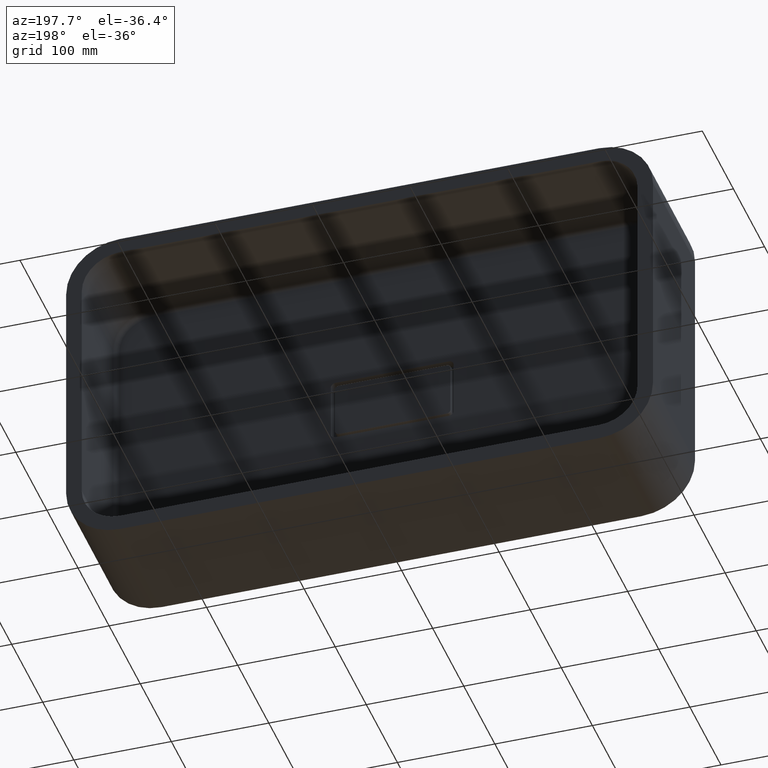
[diagram: clean part render]
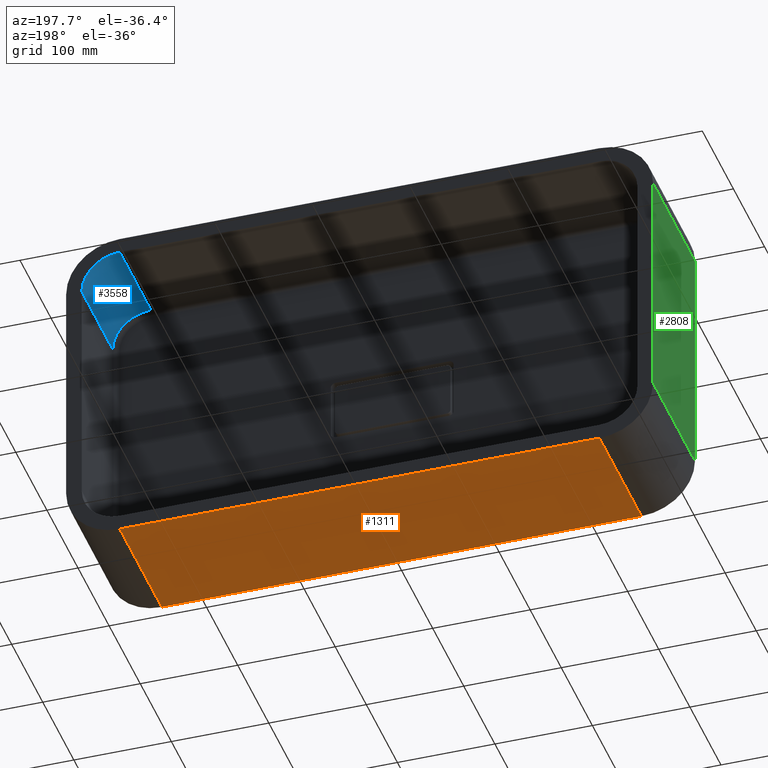
[diagram: same view with three faces highlighted in distinct colors, each labeled with its STEP entity id]
A machine part, auxiliary view with three faces highlighted in distinct colors.
Their STEP definitions:

[orange] entity #1311 — the highlighted planar face has unit normal (0, 0, 1).
#25 = ORIENTED_EDGE ( 'NONE', *, *, #1104, .F. ) ;
#312 = CARTESIAN_POINT ( 'NONE',  ( -246.0000000000001100, 180.0000000000000000, -176.0000000000000300 ) ) ;
#424 = VERTEX_POINT ( 'NONE', #3803 ) ;
#485 = VECTOR ( 'NONE', #2912, 1000.000000000000000 ) ;
#500 = LINE ( 'NONE', #2735, #485 ) ;
#618 = CARTESIAN_POINT ( 'NONE',  ( -246.0000000000001100, 0.0000000000000000000, -176.0000000000000300 ) ) ;
#1013 = DIRECTION ( 'NONE',  ( 0.0000000000000000000, 0.0000000000000000000, 1.000000000000000000 ) ) ;
#1028 = CARTESIAN_POINT ( 'NONE',  ( 245.9999999999999400, 135.0000000000000000, -176.0000000000000300 ) ) ;
#1037 = DIRECTION ( 'NONE',  ( -1.000000000000000000, 0.0000000000000000000, 0.0000000000000000000 ) ) ;
#1104 = EDGE_CURVE ( 'NONE', #424, #1836, #3034, .T. ) ;
#1184 = ORIENTED_EDGE ( 'NONE', *, *, #3426, .T. ) ;
#1185 = EDGE_LOOP ( 'NONE', ( #25, #3110, #1184, #1342 ) ) ;
#1311 = ADVANCED_FACE ( 'NONE', ( #2681 ), #3391, .F. ) ;
#1342 = ORIENTED_EDGE ( 'NONE', *, *, #1673, .F. ) ;
#1556 = CARTESIAN_POINT ( 'NONE',  ( -246.0000000000001100, 180.0000000000000000, -176.0000000000000300 ) ) ;
#1579 = VECTOR ( 'NONE', #3545, 1000.000000000000000 ) ;
#1613 = LINE ( 'NONE', #3581, #1579 ) ;
#1673 = EDGE_CURVE ( 'NONE', #1836, #2828, #2038, .T. ) ;
#1836 = VERTEX_POINT ( 'NONE', #2181 ) ;
#2007 = VECTOR ( 'NONE', #2036, 1000.000000000000000 ) ;
#2036 = DIRECTION ( 'NONE',  ( -0.0000000000000000000, -1.000000000000000000, -0.0000000000000000000 ) ) ;
#2038 = LINE ( 'NONE', #312, #2007 ) ;
#2181 = CARTESIAN_POINT ( 'NONE',  ( -246.0000000000001100, 135.0000000000000000, -176.0000000000000300 ) ) ;
#2602 = VERTEX_POINT ( 'NONE', #2851 ) ;
#2681 = FACE_OUTER_BOUND ( 'NONE', #1185, .T. ) ;
#2735 = CARTESIAN_POINT ( 'NONE',  ( 245.9999999999999400, 180.0000000000000000, -176.0000000000000300 ) ) ;
#2828 = VERTEX_POINT ( 'NONE', #618 ) ;
#2851 = CARTESIAN_POINT ( 'NONE',  ( 245.9999999999999400, 0.0000000000000000000, -176.0000000000000300 ) ) ;
#2886 = AXIS2_PLACEMENT_3D ( 'NONE', #1556, #1013, #3256 ) ;
#2912 = DIRECTION ( 'NONE',  ( -0.0000000000000000000, -1.000000000000000000, -0.0000000000000000000 ) ) ;
#3031 = VECTOR ( 'NONE', #1037, 1000.000000000000000 ) ;
#3034 = LINE ( 'NONE', #1028, #3031 ) ;
#3110 = ORIENTED_EDGE ( 'NONE', *, *, #3745, .T. ) ;
#3256 = DIRECTION ( 'NONE',  ( 1.000000000000000000, 0.0000000000000000000, -0.0000000000000000000 ) ) ;
#3391 = PLANE ( 'NONE',  #2886 ) ;
#3426 = EDGE_CURVE ( 'NONE', #2602, #2828, #1613, .T. ) ;
#3545 = DIRECTION ( 'NONE',  ( -1.000000000000000000, -0.0000000000000000000, -0.0000000000000000000 ) ) ;
#3581 = CARTESIAN_POINT ( 'NONE',  ( -246.0000000000001100, 0.0000000000000000000, -176.0000000000000300 ) ) ;
#3745 = EDGE_CURVE ( 'NONE', #424, #2602, #500, .T. ) ;
#3803 = CARTESIAN_POINT ( 'NONE',  ( 245.9999999999999400, 135.0000000000000000, -176.0000000000000300 ) ) ;

[blue] entity #3558 — the highlighted cylindrical surface (partial cylindrical patch) has radius 39 mm, axis along (-0, 1, -0).
#32 = DIRECTION ( 'NONE',  ( -0.0000000000000000000, 1.000000000000000000, -0.0000000000000000000 ) ) ;
#169 = VERTEX_POINT ( 'NONE', #2193 ) ;
#221 = CIRCLE ( 'NONE', #369, 38.99999999999995000 ) ;
#291 = CARTESIAN_POINT ( 'NONE',  ( 245.9999999999999700, 30.00000000000000000, 120.9999999999999700 ) ) ;
#328 = VERTEX_POINT ( 'NONE', #2744 ) ;
#369 = AXIS2_PLACEMENT_3D ( 'NONE', #968, #978, #988 ) ;
#427 = ORIENTED_EDGE ( 'NONE', *, *, #3459, .T. ) ;
#665 = DIRECTION ( 'NONE',  ( 0.0000000000000000000, 0.0000000000000000000, 1.000000000000000000 ) ) ;
#702 = VERTEX_POINT ( 'NONE', #2096 ) ;
#968 = CARTESIAN_POINT ( 'NONE',  ( 245.9999999999999700, 34.99999999999999300, 120.9999999999999700 ) ) ;
#976 = AXIS2_PLACEMENT_3D ( 'NONE', #3768, #3782, #3785 ) ;
#978 = DIRECTION ( 'NONE',  ( -0.0000000000000000000, -1.000000000000000000, -0.0000000000000000000 ) ) ;
#988 = DIRECTION ( 'NONE',  ( 0.0000000000000000000, 0.0000000000000000000, 1.000000000000000000 ) ) ;
#1003 = VERTEX_POINT ( 'NONE', #2291 ) ;
#1010 = CYLINDRICAL_SURFACE ( 'NONE', #1045, 38.99999999999995000 ) ;
#1045 = AXIS2_PLACEMENT_3D ( 'NONE', #291, #32, #665 ) ;
#1212 = ORIENTED_EDGE ( 'NONE', *, *, #3409, .F. ) ;
#1317 = ORIENTED_EDGE ( 'NONE', *, *, #2868, .T. ) ;
#1374 = FACE_OUTER_BOUND ( 'NONE', #3482, .T. ) ;
#1661 = CIRCLE ( 'NONE', #976, 38.99999999999995000 ) ;
#1741 = VECTOR ( 'NONE', #3555, 1000.000000000000000 ) ;
#1742 = DIRECTION ( 'NONE',  ( -0.0000000000000000000, 1.000000000000000000, -0.0000000000000000000 ) ) ;
#1777 = CARTESIAN_POINT ( 'NONE',  ( 245.9999999999999700, 30.00000000000000000, 159.9999999999999100 ) ) ;
#1848 = LINE ( 'NONE', #3436, #1741 ) ;
#2096 = CARTESIAN_POINT ( 'NONE',  ( 284.9999999999999400, 34.99999999999999300, 120.9999999999999700 ) ) ;
#2193 = CARTESIAN_POINT ( 'NONE',  ( 245.9999999999999700, 34.99999999999999300, 159.9999999999999100 ) ) ;
#2291 = CARTESIAN_POINT ( 'NONE',  ( 245.9999999999999700, 135.0000000000000000, 159.9999999999999100 ) ) ;
#2460 = ORIENTED_EDGE ( 'NONE', *, *, #3025, .T. ) ;
#2744 = CARTESIAN_POINT ( 'NONE',  ( 284.9999999999999400, 135.0000000000000000, 120.9999999999999700 ) ) ;
#2868 = EDGE_CURVE ( 'NONE', #702, #169, #221, .T. ) ;
#3025 = EDGE_CURVE ( 'NONE', #169, #1003, #3825, .T. ) ;
#3409 = EDGE_CURVE ( 'NONE', #702, #328, #1848, .T. ) ;
#3436 = CARTESIAN_POINT ( 'NONE',  ( 284.9999999999999400, 30.00000000000000000, 120.9999999999999700 ) ) ;
#3459 = EDGE_CURVE ( 'NONE', #1003, #328, #1661, .T. ) ;
#3482 = EDGE_LOOP ( 'NONE', ( #427, #1212, #1317, #2460 ) ) ;
#3555 = DIRECTION ( 'NONE',  ( -0.0000000000000000000, 1.000000000000000000, -0.0000000000000000000 ) ) ;
#3558 = ADVANCED_FACE ( 'NONE', ( #1374 ), #1010, .F. ) ;
#3768 = CARTESIAN_POINT ( 'NONE',  ( 245.9999999999999700, 135.0000000000000000, 120.9999999999999700 ) ) ;
#3782 = DIRECTION ( 'NONE',  ( 0.0000000000000000000, 1.000000000000000000, 0.0000000000000000000 ) ) ;
#3785 = DIRECTION ( 'NONE',  ( 0.0000000000000000000, 0.0000000000000000000, 1.000000000000000000 ) ) ;
#3825 = LINE ( 'NONE', #1777, #3876 ) ;
#3876 = VECTOR ( 'NONE', #1742, 1000.000000000000000 ) ;

[green] entity #2808 — the highlighted planar face has unit normal (1, 0, -0).
#60 = VECTOR ( 'NONE', #1609, 1000.000000000000000 ) ;
#105 = LINE ( 'NONE', #1599, #60 ) ;
#242 = CARTESIAN_POINT ( 'NONE',  ( -301.0000000000001100, 135.0000000000000000, -121.0000000000000300 ) ) ;
#279 = ORIENTED_EDGE ( 'NONE', *, *, #572, .F. ) ;
#346 = CARTESIAN_POINT ( 'NONE',  ( -301.0000000000001100, 180.0000000000000000, -121.0000000000000300 ) ) ;
#357 = AXIS2_PLACEMENT_3D ( 'NONE', #346, #428, #486 ) ;
#359 = PLANE ( 'NONE',  #357 ) ;
#372 = FACE_OUTER_BOUND ( 'NONE', #3340, .T. ) ;
#428 = DIRECTION ( 'NONE',  ( 1.000000000000000000, 0.0000000000000000000, -2.293849224432142400E-016 ) ) ;
#486 = DIRECTION ( 'NONE',  ( -2.293849224432142400E-016, 0.0000000000000000000, -1.000000000000000000 ) ) ;
#572 = EDGE_CURVE ( 'NONE', #3758, #2509, #3542, .T. ) ;
#793 = EDGE_CURVE ( 'NONE', #2373, #2968, #3348, .T. ) ;
#1156 = CARTESIAN_POINT ( 'NONE',  ( -301.0000000000000600, 0.0000000000000000000, 120.9999999999999600 ) ) ;
#1366 = ORIENTED_EDGE ( 'NONE', *, *, #2988, .F. ) ;
#1461 = CARTESIAN_POINT ( 'NONE',  ( -301.0000000000001100, 180.0000000000000000, -121.0000000000000300 ) ) ;
#1501 = EDGE_CURVE ( 'NONE', #2968, #2509, #2302, .T. ) ;
#1508 = CARTESIAN_POINT ( 'NONE',  ( -301.0000000000001100, 0.0000000000000000000, -121.0000000000000300 ) ) ;
#1599 = CARTESIAN_POINT ( 'NONE',  ( -301.0000000000001100, 135.0000000000000000, -121.0000000000000300 ) ) ;
#1609 = DIRECTION ( 'NONE',  ( 2.293849224432141900E-016, 0.0000000000000000000, 1.000000000000000000 ) ) ;
#1789 = ORIENTED_EDGE ( 'NONE', *, *, #793, .T. ) ;
#2210 = ORIENTED_EDGE ( 'NONE', *, *, #1501, .T. ) ;
#2293 = VECTOR ( 'NONE', #2830, 1000.000000000000000 ) ;
#2302 = LINE ( 'NONE', #2887, #2293 ) ;
#2373 = VERTEX_POINT ( 'NONE', #242 ) ;
#2509 = VERTEX_POINT ( 'NONE', #1156 ) ;
#2808 = ADVANCED_FACE ( 'NONE', ( #372 ), #359, .F. ) ;
#2830 = DIRECTION ( 'NONE',  ( 2.293849224432141900E-016, 0.0000000000000000000, 1.000000000000000000 ) ) ;
#2871 = CARTESIAN_POINT ( 'NONE',  ( -301.0000000000000600, 135.0000000000000000, 120.9999999999999600 ) ) ;
#2887 = CARTESIAN_POINT ( 'NONE',  ( -301.0000000000001100, 0.0000000000000000000, -121.0000000000000300 ) ) ;
#2968 = VERTEX_POINT ( 'NONE', #1508 ) ;
#2988 = EDGE_CURVE ( 'NONE', #2373, #3758, #105, .T. ) ;
#3196 = DIRECTION ( 'NONE',  ( -0.0000000000000000000, -1.000000000000000000, -0.0000000000000000000 ) ) ;
#3340 = EDGE_LOOP ( 'NONE', ( #1366, #1789, #2210, #279 ) ) ;
#3341 = VECTOR ( 'NONE', #3848, 1000.000000000000000 ) ;
#3348 = LINE ( 'NONE', #1461, #3341 ) ;
#3523 = VECTOR ( 'NONE', #3196, 1000.000000000000000 ) ;
#3542 = LINE ( 'NONE', #3622, #3523 ) ;
#3622 = CARTESIAN_POINT ( 'NONE',  ( -301.0000000000000600, 180.0000000000000000, 120.9999999999999600 ) ) ;
#3758 = VERTEX_POINT ( 'NONE', #2871 ) ;
#3848 = DIRECTION ( 'NONE',  ( -0.0000000000000000000, -1.000000000000000000, -0.0000000000000000000 ) ) ;